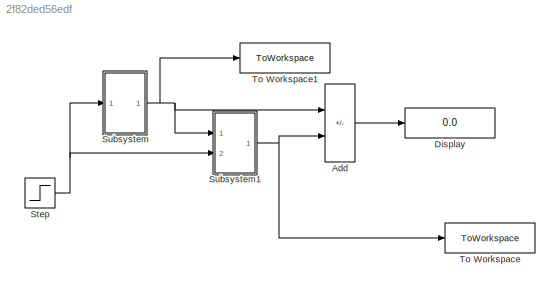
MODEL slx_2f82ded56edf
KIND model
CONFIG AbsTol = auto
CONFIG EnableMultiTasking = off
CONFIG FixedStep = tstep
CONFIG MaxStep = auto
CONFIG MinStep = auto
CONFIG RelTol = 1e-3
CONFIG SampleTimeConstraint = Unconstrained
CONFIG SolverName = VariableStepAuto
CONFIG StartTime = ts
CONFIG StopTime = tf
BLOCK [Sum] Add
  IconShape = rectangular
  Inputs = +-
  Ports = [2, 1]
BLOCK [Display] Display
  Decimation = 1
  Ports = [1]
BLOCK [Step] Step
  SampleTime = 0
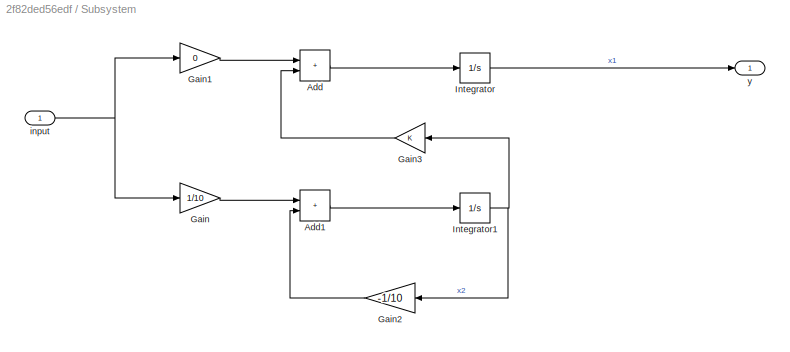
BLOCK [SubSystem] Subsystem
  Ports = [1, 1]
  RequestExecContextInheritance = off
BLOCK [Sum] Subsystem/Add
  IconShape = rectangular
  Ports = [2, 1]
BLOCK [Sum] Subsystem/Add1
  IconShape = rectangular
  Ports = [2, 1]
BLOCK [Gain] Subsystem/Gain
  Gain = 1/10
BLOCK [Gain] Subsystem/Gain1
  Gain = 0
BLOCK [Gain] Subsystem/Gain2
  Gain = -1/10
  NameLocation = top
BLOCK [Gain] Subsystem/Gain3
BLOCK [Integrator] Subsystem/Integrator
  Ports = [1, 1]
BLOCK [Integrator] Subsystem/Integrator1
  Ports = [1, 1]
BLOCK [Inport] Subsystem/input
BLOCK [Outport] Subsystem/y
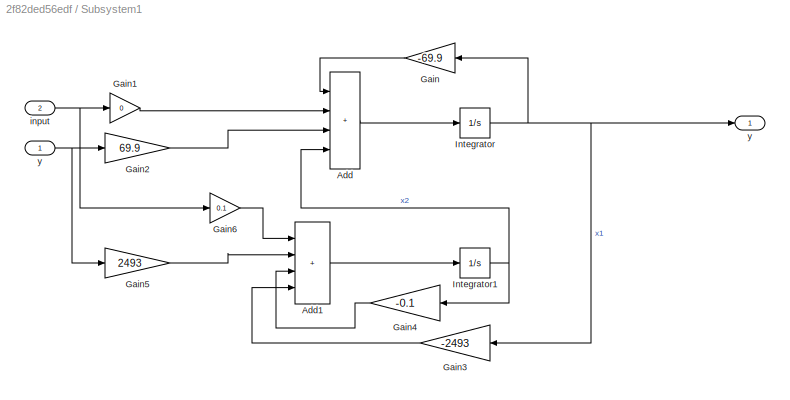
BLOCK [SubSystem] Subsystem1
  Ports = [2, 1]
  RequestExecContextInheritance = off
BLOCK [Sum] Subsystem1/Add
  IconShape = rectangular
  Inputs = ++++
  Ports = [4, 1]
BLOCK [Sum] Subsystem1/Add1
  IconShape = rectangular
  Inputs = ++++
  Ports = [4, 1]
BLOCK [Gain] Subsystem1/Gain
  Gain = -69.9
  NameLocation = top
BLOCK [Gain] Subsystem1/Gain1
  Gain = 0
BLOCK [Gain] Subsystem1/Gain2
  Gain = 69.9
BLOCK [Gain] Subsystem1/Gain3
  Gain = -2493
  NameLocation = top
BLOCK [Gain] Subsystem1/Gain4
  Gain = -0.1
  NameLocation = top
BLOCK [Gain] Subsystem1/Gain5
  Gain = 2493
BLOCK [Gain] Subsystem1/Gain6
  Gain = 0.1
BLOCK [Integrator] Subsystem1/Integrator
  Ports = [1, 1]
BLOCK [Integrator] Subsystem1/Integrator1
  Ports = [1, 1]
BLOCK [Inport] Subsystem1/input
  Port = 2
BLOCK [Outport] Subsystem1/y
BLOCK [Inport] Subsystem1/y 
BLOCK [ToWorkspace] To Workspace
  FixptAsFi = on
  MaxDataPoints = inf
  Ports = [1]
  SampleTime = -1
  SaveFormat = Structure With Time
  VariableName = simout
BLOCK [ToWorkspace] To Workspace1
  FixptAsFi = on
  MaxDataPoints = inf
  Ports = [1]
  SampleTime = -1
  SaveFormat = Structure With Time
  VariableName = simout1
LINE Add:1 -> Display:1
NET Step:1 -> Subsystem1:2, Subsystem:1
LINE Subsystem/Add1:1 -> Subsystem/Integrator1:1
LINE Subsystem/Add:1 -> Subsystem/Integrator:1
LINE Subsystem/Gain1:1 -> Subsystem/Add:1
LINE Subsystem/Gain2:1 -> Subsystem/Add1:2
LINE Subsystem/Gain3:1 -> Subsystem/Add:2
LINE Subsystem/Gain:1 -> Subsystem/Add1:1
NET Subsystem/Integrator1:1 -> Subsystem/Gain2:1, Subsystem/Gain3:1
LINE Subsystem/Integrator:1 -> Subsystem/y:1
NET Subsystem/input:1 -> Subsystem/Gain1:1, Subsystem/Gain:1
LINE Subsystem1/Add1:1 -> Subsystem1/Integrator1:1
LINE Subsystem1/Add:1 -> Subsystem1/Integrator:1
LINE Subsystem1/Gain1:1 -> Subsystem1/Add:2
LINE Subsystem1/Gain2:1 -> Subsystem1/Add:3
LINE Subsystem1/Gain3:1 -> Subsystem1/Add1:4
LINE Subsystem1/Gain4:1 -> Subsystem1/Add1:3
LINE Subsystem1/Gain5:1 -> Subsystem1/Add1:2
LINE Subsystem1/Gain6:1 -> Subsystem1/Add1:1
LINE Subsystem1/Gain:1 -> Subsystem1/Add:1
NET Subsystem1/Integrator1:1 -> Subsystem1/Add:4, Subsystem1/Gain4:1
NET Subsystem1/Integrator:1 -> Subsystem1/Gain3:1, Subsystem1/Gain:1, Subsystem1/y:1
NET Subsystem1/input:1 -> Subsystem1/Gain1:1, Subsystem1/Gain6:1
NET Subsystem1/y :1 -> Subsystem1/Gain2:1, Subsystem1/Gain5:1
NET Subsystem1:1 -> Add:2, To Workspace:1
NET Subsystem:1 -> Add:1, Subsystem1:1, To Workspace1:1
note: NET lines group one-source signal fan-out (src -> all destinations, sorted); 1:1 wires keep LINE
